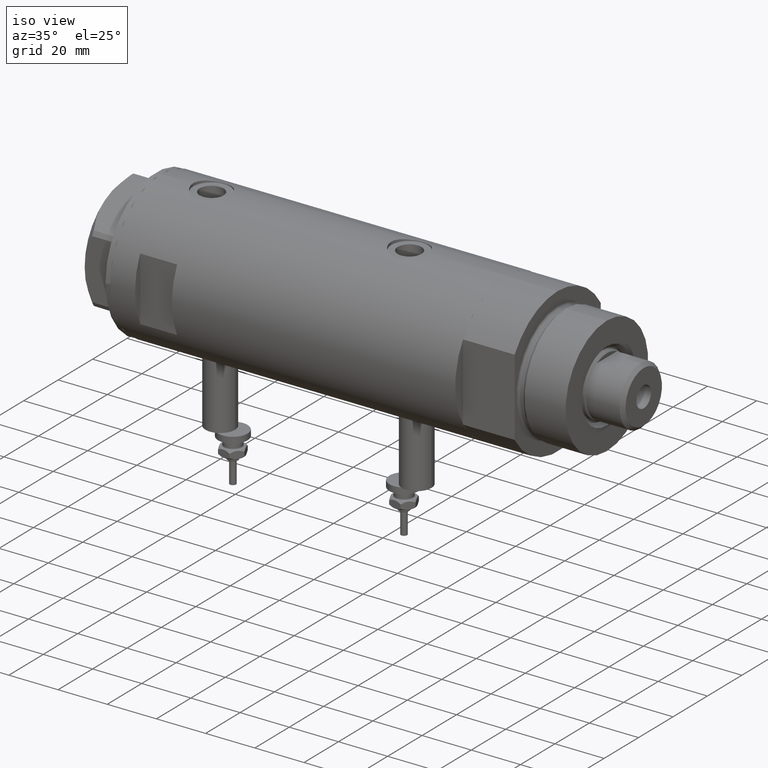
[diagram: clean part render]
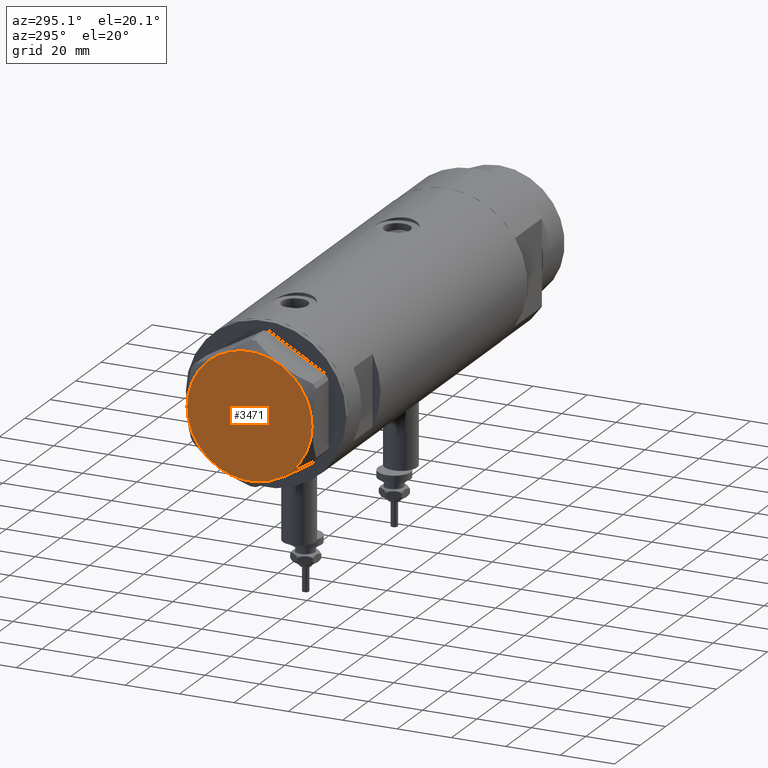
[diagram: tour spotlight — one face highlighted and labeled with its STEP entity id]
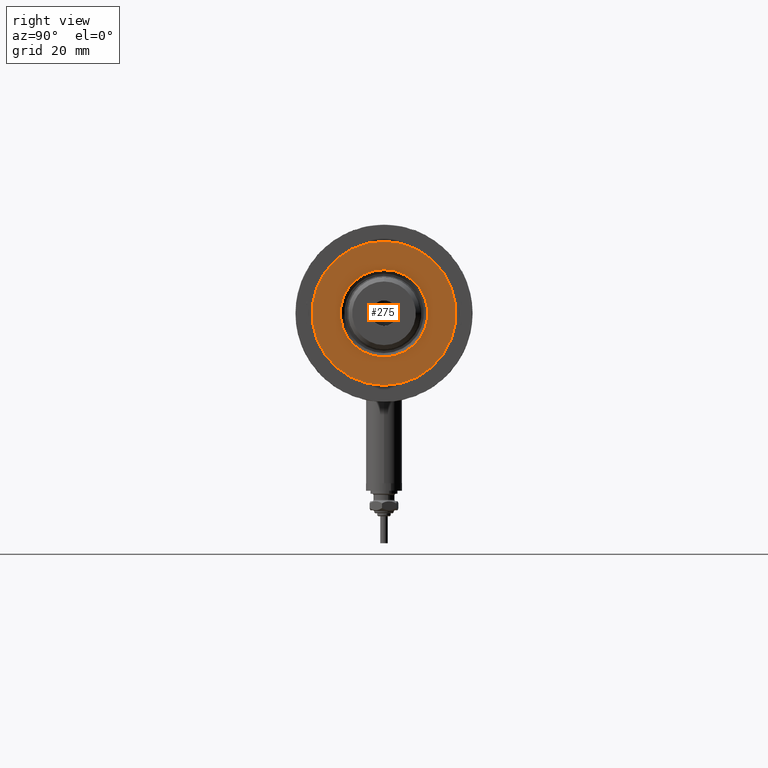
[diagram: tour spotlight — one face highlighted and labeled with its STEP entity id]
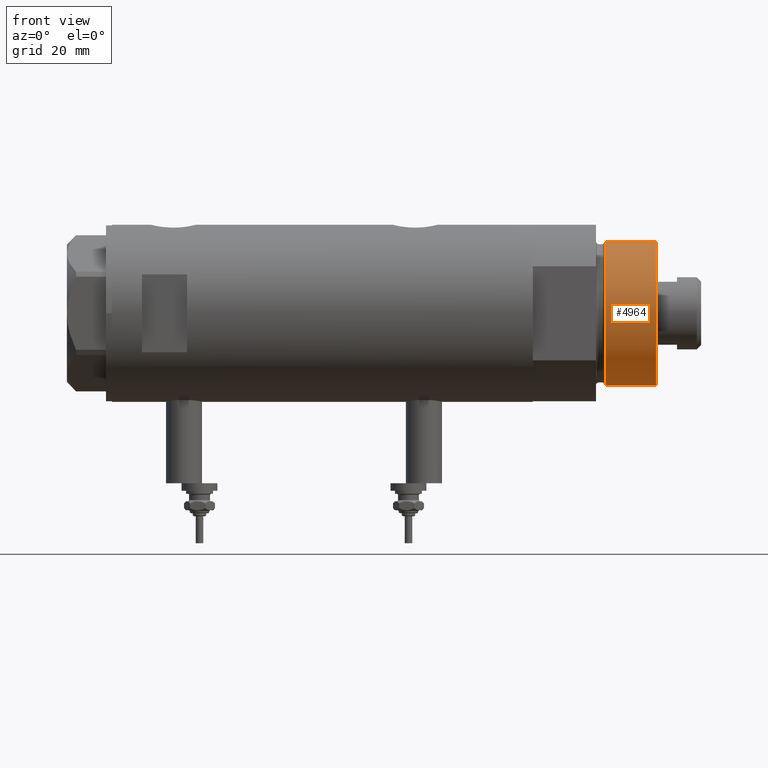
[diagram: tour spotlight — one face highlighted and labeled with its STEP entity id]
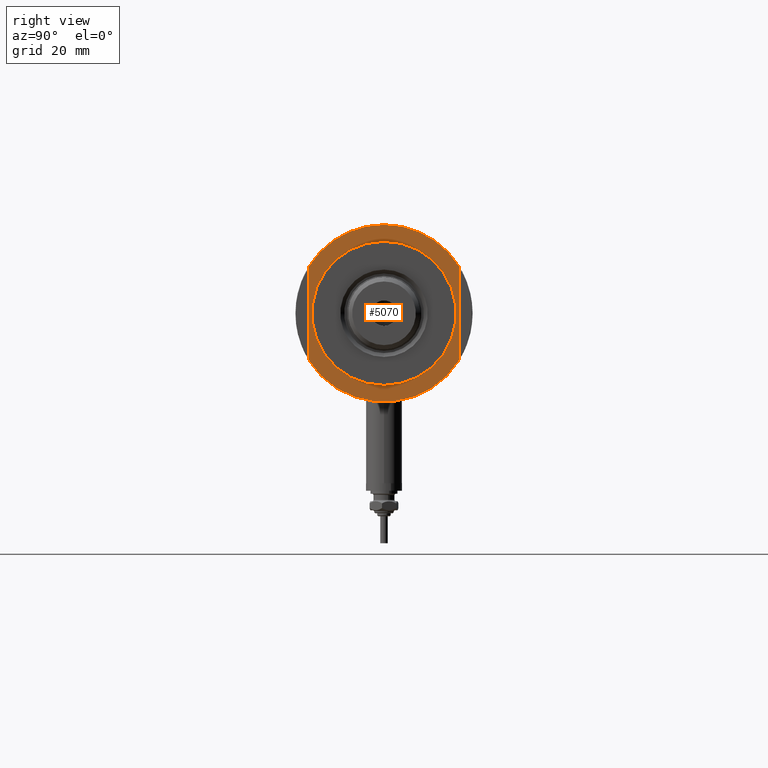
[diagram: tour spotlight — one face highlighted and labeled with its STEP entity id]
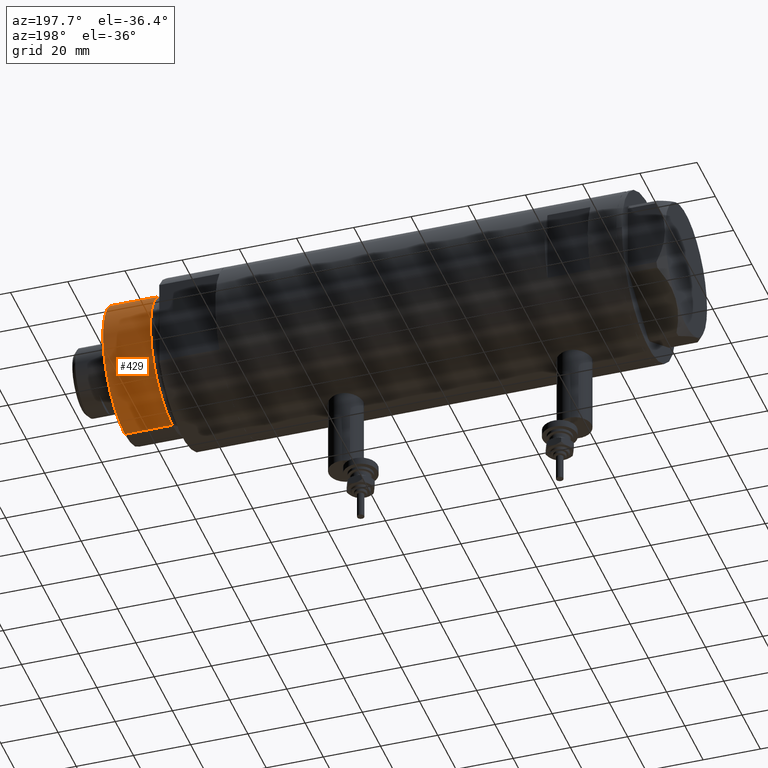
[diagram: tour spotlight — one face highlighted and labeled with its STEP entity id]
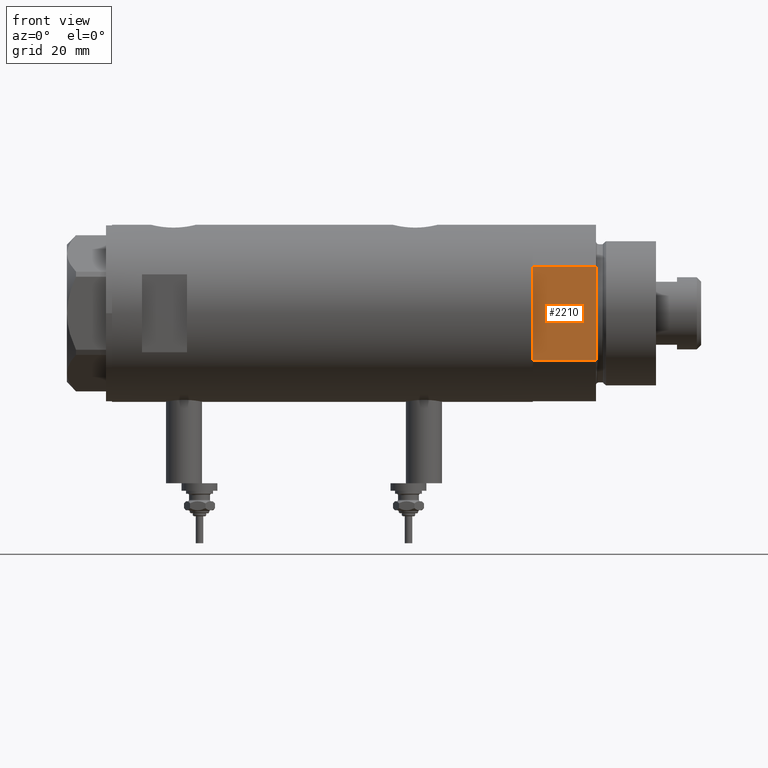
[diagram: tour spotlight — one face highlighted and labeled with its STEP entity id]
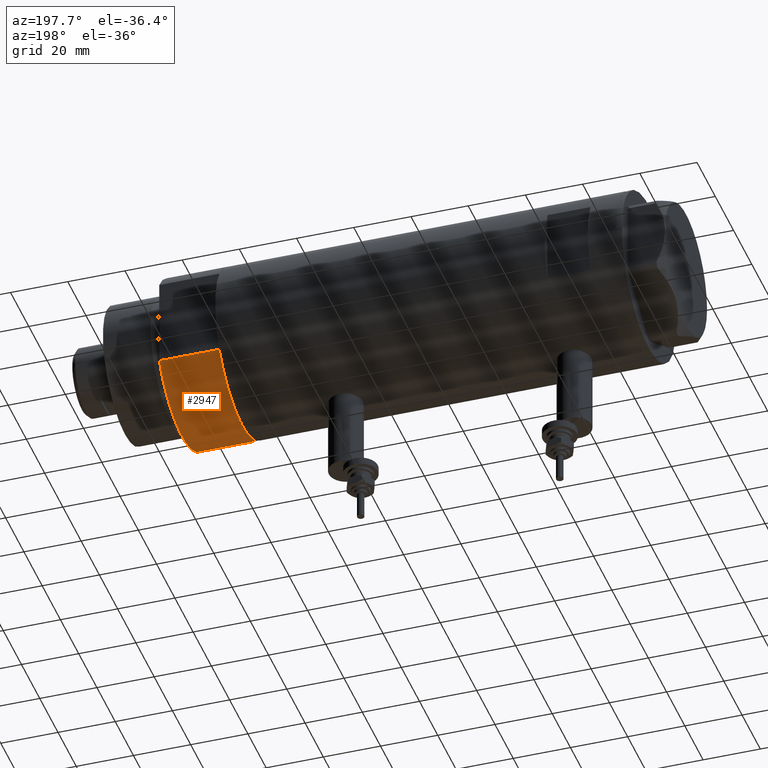
[diagram: tour spotlight — one face highlighted and labeled with its STEP entity id]
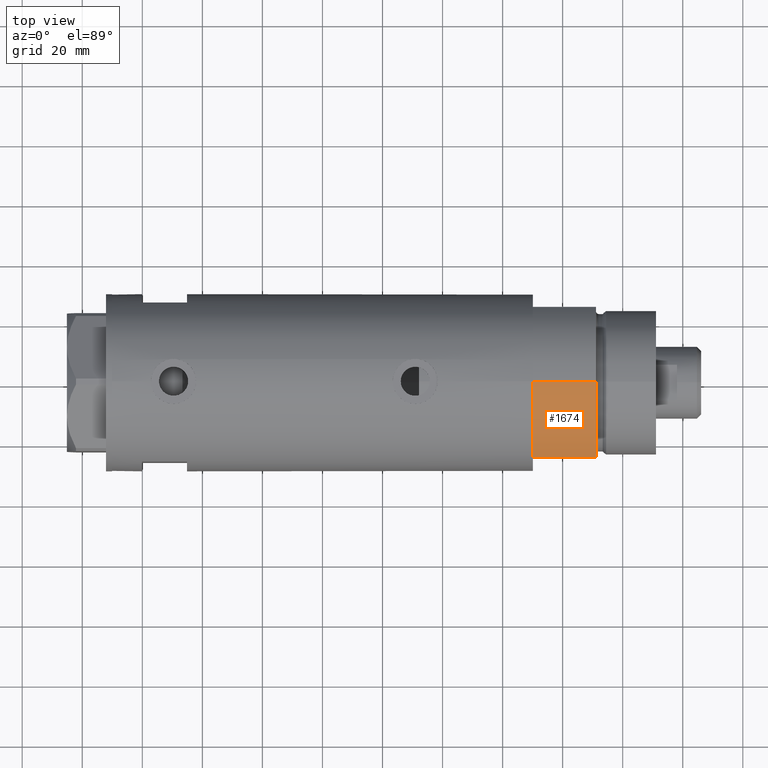
[diagram: tour spotlight — one face highlighted and labeled with its STEP entity id]
A machine part: a face-by-face anatomy tour. The part has 212 B-rep faces; the first image is the clean iso view, then the 8 largest visible faces are spotlighted one at a time (largest first), each with its STEP entity span.

Face 1 — auxiliary view, entity #3471. In plain terms, the highlighted planar face has unit normal (-1, -0, 0).
Definition (entity closure, byte-faithful):
#148 = CIRCLE ( 'NONE', #3799, 23.00000000000004619 ) ;
#333 = EDGE_CURVE ( 'NONE', #2667, #810, #4101, .T. ) ;
#357 = DIRECTION ( 'NONE',  ( 1.000000000000000000, 0.000000000000000000, 0.000000000000000000 ) ) ;
#488 = AXIS2_PLACEMENT_3D ( 'NONE', #2920, #4751, #654 ) ;
#590 = EDGE_CURVE ( 'NONE', #810, #648, #3520, .T. ) ;
#608 = CARTESIAN_POINT ( 'NONE',  ( -11.50000000000004441, 19.91858428704211548, 13.00000000000000000 ) ) ;
#646 = EDGE_LOOP ( 'NONE', ( #2012, #4881, #3392, #3173, #3117, #5731 ) ) ;
#648 = VERTEX_POINT ( 'NONE', #608 ) ;
#654 = DIRECTION ( 'NONE',  ( 1.000000000000000000, 0.000000000000000000, -0.000000000000000000 ) ) ;
#757 = EDGE_CURVE ( 'NONE', #648, #5474, #5346, .T. ) ;
#810 = VERTEX_POINT ( 'NONE', #3004 ) ;
#939 = VERTEX_POINT ( 'NONE', #4027 ) ;
#1082 = PLANE ( 'NONE',  #488 ) ;
#1109 = FACE_OUTER_BOUND ( 'NONE', #646, .T. ) ;
#1119 = DIRECTION ( 'NONE',  ( 1.000000000000000000, 0.000000000000000000, 0.000000000000000000 ) ) ;
#1472 = DIRECTION ( 'NONE',  ( 0.000000000000000000, 0.000000000000000000, 1.000000000000000000 ) ) ;
#2012 = ORIENTED_EDGE ( 'NONE', *, *, #2110, .T. ) ;
#2077 = DIRECTION ( 'NONE',  ( 0.000000000000000000, 0.000000000000000000, 1.000000000000000000 ) ) ;
#2110 = EDGE_CURVE ( 'NONE', #2516, #2667, #5265, .T. ) ;
#2516 = VERTEX_POINT ( 'NONE', #3612 ) ;
#2664 = AXIS2_PLACEMENT_3D ( 'NONE', #4433, #4843, #357 ) ;
#2667 = VERTEX_POINT ( 'NONE', #4029 ) ;
#2831 = DIRECTION ( 'NONE',  ( 1.000000000000000000, 0.000000000000000000, 0.000000000000000000 ) ) ;
#2920 = CARTESIAN_POINT ( 'NONE',  ( 0.000000000000000000, 0.000000000000000000, 13.00000000000000000 ) ) ;
#2977 = CARTESIAN_POINT ( 'NONE',  ( 0.000000000000000000, 0.000000000000000000, 13.00000000000000000 ) ) ;
#3004 = CARTESIAN_POINT ( 'NONE',  ( 11.49999999999990408, 19.91858428704219364, 13.00000000000000000 ) ) ;
#3005 = DIRECTION ( 'NONE',  ( 0.000000000000000000, 0.000000000000000000, 1.000000000000000000 ) ) ;
#3009 = EDGE_CURVE ( 'NONE', #939, #2516, #3345, .T. ) ;
#3090 = DIRECTION ( 'NONE',  ( 1.000000000000000000, 0.000000000000000000, 0.000000000000000000 ) ) ;
#3107 = DIRECTION ( 'NONE',  ( 1.000000000000000000, 0.000000000000000000, 0.000000000000000000 ) ) ;
#3117 = ORIENTED_EDGE ( 'NONE', *, *, #5676, .T. ) ;
#3173 = ORIENTED_EDGE ( 'NONE', *, *, #757, .T. ) ;
#3247 = AXIS2_PLACEMENT_3D ( 'NONE', #5059, #1472, #2831 ) ;
#3325 = DIRECTION ( 'NONE',  ( 0.000000000000000000, 0.000000000000000000, 1.000000000000000000 ) ) ;
#3345 = CIRCLE ( 'NONE', #3247, 23.00000000000004619 ) ;
#3392 = ORIENTED_EDGE ( 'NONE', *, *, #590, .T. ) ;
#3413 = CARTESIAN_POINT ( 'NONE',  ( 0.000000000000000000, 0.000000000000000000, 13.00000000000000000 ) ) ;
#3471 = ADVANCED_FACE ( 'NONE', ( #1109 ), #1082, .T. ) ;
#3520 = CIRCLE ( 'NONE', #3710, 23.00000000000004619 ) ;
#3612 = CARTESIAN_POINT ( 'NONE',  ( 11.50000000000018296, -19.91858428704203732, 13.00000000000000000 ) ) ;
#3710 = AXIS2_PLACEMENT_3D ( 'NONE', #4201, #3325, #1119 ) ;
#3799 = AXIS2_PLACEMENT_3D ( 'NONE', #3413, #4106, #3107 ) ;
#3909 = CARTESIAN_POINT ( 'NONE',  ( 0.000000000000000000, 0.000000000000000000, 13.00000000000000000 ) ) ;
#4027 = CARTESIAN_POINT ( 'NONE',  ( -11.49999999999990585, -19.91858428704219364, 13.00000000000000000 ) ) ;
#4029 = CARTESIAN_POINT ( 'NONE',  ( 22.99999999999995026, 2.373657066004705010E-13, 13.00000000000000000 ) ) ;
#4101 = CIRCLE ( 'NONE', #2664, 23.00000000000004619 ) ;
#4106 = DIRECTION ( 'NONE',  ( 0.000000000000000000, 0.000000000000000000, 1.000000000000000000 ) ) ;
#4201 = CARTESIAN_POINT ( 'NONE',  ( 0.000000000000000000, 0.000000000000000000, 13.00000000000000000 ) ) ;
#4433 = CARTESIAN_POINT ( 'NONE',  ( 0.000000000000000000, 0.000000000000000000, 13.00000000000000000 ) ) ;
#4751 = DIRECTION ( 'NONE',  ( 0.000000000000000000, 0.000000000000000000, 1.000000000000000000 ) ) ;
#4843 = DIRECTION ( 'NONE',  ( 0.000000000000000000, 0.000000000000000000, 1.000000000000000000 ) ) ;
#4881 = ORIENTED_EDGE ( 'NONE', *, *, #333, .T. ) ;
#5059 = CARTESIAN_POINT ( 'NONE',  ( 0.000000000000000000, 0.000000000000000000, 13.00000000000000000 ) ) ;
#5149 = AXIS2_PLACEMENT_3D ( 'NONE', #2977, #2077, #3090 ) ;
#5163 = AXIS2_PLACEMENT_3D ( 'NONE', #3909, #3005, #5311 ) ;
#5265 = CIRCLE ( 'NONE', #5163, 23.00000000000004619 ) ;
#5311 = DIRECTION ( 'NONE',  ( 1.000000000000000000, 0.000000000000000000, 0.000000000000000000 ) ) ;
#5346 = CIRCLE ( 'NONE', #5149, 23.00000000000004619 ) ;
#5474 = VERTEX_POINT ( 'NONE', #5560 ) ;
#5560 = CARTESIAN_POINT ( 'NONE',  ( -23.00000000000004619, -8.112498833180673323E-14, 13.00000000000000000 ) ) ;
#5676 = EDGE_CURVE ( 'NONE', #5474, #939, #148, .T. ) ;
#5731 = ORIENTED_EDGE ( 'NONE', *, *, #3009, .T. ) ;

Face 2 — right view, entity #275. In plain terms, the highlighted planar face has unit normal (1, 0, -0).
Definition (entity closure, byte-faithful):
#149 = EDGE_CURVE ( 'NONE', #1471, #5301, #859, .T. ) ;
#275 = ADVANCED_FACE ( 'NONE', ( #5364, #1270 ), #4470, .T. ) ;
#489 = EDGE_LOOP ( 'NONE', ( #2098, #4468 ) ) ;
#684 = CIRCLE ( 'NONE', #983, 14.54999999999997939 ) ;
#723 = CARTESIAN_POINT ( 'NONE',  ( 24.00000000000000355, 2.939152317953648289E-15, 41.00000000000000000 ) ) ;
#727 = DIRECTION ( 'NONE',  ( 0.000000000000000000, 0.000000000000000000, 1.000000000000000000 ) ) ;
#745 = DIRECTION ( 'NONE',  ( -0.000000000000000000, -0.000000000000000000, -1.000000000000000000 ) ) ;
#749 = AXIS2_PLACEMENT_3D ( 'NONE', #5269, #745, #5689 ) ;
#859 = CIRCLE ( 'NONE', #2353, 24.00000000000000355 ) ;
#983 = AXIS2_PLACEMENT_3D ( 'NONE', #2089, #1171, #4431 ) ;
#1171 = DIRECTION ( 'NONE',  ( -0.000000000000000000, -0.000000000000000000, -1.000000000000000000 ) ) ;
#1181 = VERTEX_POINT ( 'NONE', #1619 ) ;
#1270 = FACE_OUTER_BOUND ( 'NONE', #489, .T. ) ;
#1471 = VERTEX_POINT ( 'NONE', #723 ) ;
#1619 = CARTESIAN_POINT ( 'NONE',  ( -14.54999999999997939, 1.781861092759396721E-15, 41.00000000000000000 ) ) ;
#1650 = AXIS2_PLACEMENT_3D ( 'NONE', #2874, #727, #5248 ) ;
#2089 = CARTESIAN_POINT ( 'NONE',  ( 0.000000000000000000, 0.000000000000000000, 41.00000000000000000 ) ) ;
#2098 = ORIENTED_EDGE ( 'NONE', *, *, #2707, .T. ) ;
#2323 = CARTESIAN_POINT ( 'NONE',  ( 0.000000000000000000, 0.000000000000000000, 41.00000000000000000 ) ) ;
#2353 = AXIS2_PLACEMENT_3D ( 'NONE', #4023, #5844, #3572 ) ;
#2668 = ORIENTED_EDGE ( 'NONE', *, *, #4055, .T. ) ;
#2707 = EDGE_CURVE ( 'NONE', #5301, #1471, #5271, .T. ) ;
#2874 = CARTESIAN_POINT ( 'NONE',  ( 0.000000000000000000, 0.000000000000000000, 41.00000000000000000 ) ) ;
#2916 = DIRECTION ( 'NONE',  ( 1.000000000000000000, 0.000000000000000000, -0.000000000000000000 ) ) ;
#3572 = DIRECTION ( 'NONE',  ( 1.000000000000000000, 0.000000000000000000, 0.000000000000000000 ) ) ;
#3896 = EDGE_LOOP ( 'NONE', ( #2668, #5817 ) ) ;
#4019 = EDGE_CURVE ( 'NONE', #1181, #5459, #684, .T. ) ;
#4023 = CARTESIAN_POINT ( 'NONE',  ( 0.000000000000000000, 0.000000000000000000, 41.00000000000000000 ) ) ;
#4055 = EDGE_CURVE ( 'NONE', #5459, #1181, #4603, .T. ) ;
#4247 = DIRECTION ( 'NONE',  ( 0.000000000000000000, 0.000000000000000000, 1.000000000000000000 ) ) ;
#4431 = DIRECTION ( 'NONE',  ( 1.000000000000000000, 0.000000000000000000, 0.000000000000000000 ) ) ;
#4468 = ORIENTED_EDGE ( 'NONE', *, *, #149, .T. ) ;
#4470 = PLANE ( 'NONE',  #4959 ) ;
#4603 = CIRCLE ( 'NONE', #749, 14.54999999999997939 ) ;
#4802 = CARTESIAN_POINT ( 'NONE',  ( 14.54999999999997939, 0.000000000000000000, 41.00000000000000000 ) ) ;
#4959 = AXIS2_PLACEMENT_3D ( 'NONE', #2323, #4247, #2916 ) ;
#5248 = DIRECTION ( 'NONE',  ( 1.000000000000000000, 0.000000000000000000, 0.000000000000000000 ) ) ;
#5269 = CARTESIAN_POINT ( 'NONE',  ( 0.000000000000000000, 0.000000000000000000, 41.00000000000000000 ) ) ;
#5271 = CIRCLE ( 'NONE', #1650, 24.00000000000000355 ) ;
#5301 = VERTEX_POINT ( 'NONE', #5871 ) ;
#5364 = FACE_BOUND ( 'NONE', #3896, .T. ) ;
#5459 = VERTEX_POINT ( 'NONE', #4802 ) ;
#5689 = DIRECTION ( 'NONE',  ( 1.000000000000000000, 0.000000000000000000, 0.000000000000000000 ) ) ;
#5817 = ORIENTED_EDGE ( 'NONE', *, *, #4019, .T. ) ;
#5844 = DIRECTION ( 'NONE',  ( 0.000000000000000000, 0.000000000000000000, 1.000000000000000000 ) ) ;
#5871 = CARTESIAN_POINT ( 'NONE',  ( -24.00000000000000355, 0.000000000000000000, 41.00000000000000000 ) ) ;

Face 3 — front view, entity #4964. In plain terms, the highlighted cylindrical surface (partial cylindrical patch) has radius 24 mm, axis along (-1, -0, 0).
Definition (entity closure, byte-faithful):
#133 = ORIENTED_EDGE ( 'NONE', *, *, #5221, .T. ) ;
#138 = VECTOR ( 'NONE', #1680, 1000.000000000000000 ) ;
#220 = LINE ( 'NONE', #4837, #138 ) ;
#723 = CARTESIAN_POINT ( 'NONE',  ( 24.00000000000000355, 2.939152317953648289E-15, 41.00000000000000000 ) ) ;
#727 = DIRECTION ( 'NONE',  ( 0.000000000000000000, 0.000000000000000000, 1.000000000000000000 ) ) ;
#853 = DIRECTION ( 'NONE',  ( 1.000000000000000000, 0.000000000000000000, 0.000000000000000000 ) ) ;
#1069 = CARTESIAN_POINT ( 'NONE',  ( 0.000000000000000000, 0.000000000000000000, 41.00000000000000000 ) ) ;
#1102 = DIRECTION ( 'NONE',  ( -0.000000000000000000, -0.000000000000000000, -1.000000000000000000 ) ) ;
#1471 = VERTEX_POINT ( 'NONE', #723 ) ;
#1524 = ORIENTED_EDGE ( 'NONE', *, *, #4785, .F. ) ;
#1650 = AXIS2_PLACEMENT_3D ( 'NONE', #2874, #727, #5248 ) ;
#1680 = DIRECTION ( 'NONE',  ( -0.000000000000000000, -0.000000000000000000, -1.000000000000000000 ) ) ;
#1876 = AXIS2_PLACEMENT_3D ( 'NONE', #5497, #5419, #853 ) ;
#1931 = DIRECTION ( 'NONE',  ( -1.000000000000000000, 0.000000000000000000, 0.000000000000000000 ) ) ;
#2558 = CARTESIAN_POINT ( 'NONE',  ( -24.00000000000000355, 0.000000000000000000, 41.00000000000000000 ) ) ;
#2639 = VERTEX_POINT ( 'NONE', #3998 ) ;
#2707 = EDGE_CURVE ( 'NONE', #5301, #1471, #5271, .T. ) ;
#2721 = ORIENTED_EDGE ( 'NONE', *, *, #5780, .T. ) ;
#2874 = CARTESIAN_POINT ( 'NONE',  ( 0.000000000000000000, 0.000000000000000000, 41.00000000000000000 ) ) ;
#3030 = AXIS2_PLACEMENT_3D ( 'NONE', #1069, #5486, #1931 ) ;
#3257 = EDGE_LOOP ( 'NONE', ( #1524, #3339, #2721, #133 ) ) ;
#3339 = ORIENTED_EDGE ( 'NONE', *, *, #2707, .F. ) ;
#3670 = FACE_OUTER_BOUND ( 'NONE', #3257, .T. ) ;
#3734 = CYLINDRICAL_SURFACE ( 'NONE', #3030, 24.00000000000000355 ) ;
#3998 = CARTESIAN_POINT ( 'NONE',  ( 24.00000000000000355, 2.939152317953648289E-15, 24.37384048104054557 ) ) ;
#4265 = CARTESIAN_POINT ( 'NONE',  ( -24.00000000000000355, 0.000000000000000000, 24.37384048104054557 ) ) ;
#4372 = CIRCLE ( 'NONE', #1876, 24.00000000000000355 ) ;
#4401 = VERTEX_POINT ( 'NONE', #4265 ) ;
#4778 = LINE ( 'NONE', #2558, #5722 ) ;
#4785 = EDGE_CURVE ( 'NONE', #1471, #2639, #220, .T. ) ;
#4837 = CARTESIAN_POINT ( 'NONE',  ( 24.00000000000000355, 2.939152317953648289E-15, 41.00000000000000000 ) ) ;
#4964 = ADVANCED_FACE ( 'NONE', ( #3670 ), #3734, .T. ) ;
#5221 = EDGE_CURVE ( 'NONE', #4401, #2639, #4372, .T. ) ;
#5248 = DIRECTION ( 'NONE',  ( 1.000000000000000000, 0.000000000000000000, 0.000000000000000000 ) ) ;
#5271 = CIRCLE ( 'NONE', #1650, 24.00000000000000355 ) ;
#5301 = VERTEX_POINT ( 'NONE', #5871 ) ;
#5419 = DIRECTION ( 'NONE',  ( -0.000000000000000000, -0.000000000000000000, 1.000000000000000000 ) ) ;
#5486 = DIRECTION ( 'NONE',  ( -0.000000000000000000, -0.000000000000000000, -1.000000000000000000 ) ) ;
#5497 = CARTESIAN_POINT ( 'NONE',  ( 0.000000000000000000, 0.000000000000000000, 24.37384048104054557 ) ) ;
#5722 = VECTOR ( 'NONE', #1102, 1000.000000000000000 ) ;
#5780 = EDGE_CURVE ( 'NONE', #5301, #4401, #4778, .T. ) ;
#5871 = CARTESIAN_POINT ( 'NONE',  ( -24.00000000000000355, 0.000000000000000000, 41.00000000000000000 ) ) ;

Face 4 — right view, entity #5070. In plain terms, the highlighted planar face has unit normal (1, 0, -0).
Definition (entity closure, byte-faithful):
#62 = DIRECTION ( 'NONE',  ( 0.000000000000000000, 0.000000000000000000, 1.000000000000000000 ) ) ;
#213 = FACE_BOUND ( 'NONE', #335, .T. ) ;
#335 = EDGE_LOOP ( 'NONE', ( #3725, #3768 ) ) ;
#380 = VERTEX_POINT ( 'NONE', #4209 ) ;
#388 = VECTOR ( 'NONE', #1370, 1000.000000000000000 ) ;
#449 = DIRECTION ( 'NONE',  ( 1.000000000000000000, 0.000000000000000000, 0.000000000000000000 ) ) ;
#500 = EDGE_CURVE ( 'NONE', #2611, #5172, #775, .T. ) ;
#673 = DIRECTION ( 'NONE',  ( 1.000000000000000000, 0.000000000000000000, -0.000000000000000000 ) ) ;
#685 = VERTEX_POINT ( 'NONE', #2902 ) ;
#705 = FACE_OUTER_BOUND ( 'NONE', #5137, .T. ) ;
#775 = LINE ( 'NONE', #981, #388 ) ;
#923 = VERTEX_POINT ( 'NONE', #5061 ) ;
#954 = CARTESIAN_POINT ( 'NONE',  ( 0.000000000000000000, 0.000000000000000000, 21.00000000000000000 ) ) ;
#981 = CARTESIAN_POINT ( 'NONE',  ( -15.66045976336583401, 25.00000000000000000, 21.00000000000000000 ) ) ;
#1049 = AXIS2_PLACEMENT_3D ( 'NONE', #3516, #3636, #2621 ) ;
#1077 = ORIENTED_EDGE ( 'NONE', *, *, #500, .F. ) ;
#1081 = CARTESIAN_POINT ( 'NONE',  ( 0.000000000000000000, 0.000000000000000000, 21.00000000000000000 ) ) ;
#1124 = CARTESIAN_POINT ( 'NONE',  ( 0.000000000000000000, 0.000000000000000000, 21.00000000000000000 ) ) ;
#1219 = VERTEX_POINT ( 'NONE', #1676 ) ;
#1221 = AXIS2_PLACEMENT_3D ( 'NONE', #1124, #1988, #673 ) ;
#1348 = AXIS2_PLACEMENT_3D ( 'NONE', #3222, #5866, #449 ) ;
#1370 = DIRECTION ( 'NONE',  ( 1.000000000000000000, 0.000000000000000000, 0.000000000000000000 ) ) ;
#1393 = EDGE_CURVE ( 'NONE', #3841, #1219, #4497, .T. ) ;
#1463 = EDGE_CURVE ( 'NONE', #685, #1219, #4757, .T. ) ;
#1618 = AXIS2_PLACEMENT_3D ( 'NONE', #954, #62, #3328 ) ;
#1636 = ORIENTED_EDGE ( 'NONE', *, *, #1463, .F. ) ;
#1676 = CARTESIAN_POINT ( 'NONE',  ( -15.66045976336583045, -24.99999999999999645, 20.99999999999999645 ) ) ;
#1988 = DIRECTION ( 'NONE',  ( 0.000000000000000000, 0.000000000000000000, 1.000000000000000000 ) ) ;
#2015 = CIRCLE ( 'NONE', #1348, 24.00000000000000000 ) ;
#2024 = DIRECTION ( 'NONE',  ( -0.000000000000000000, -0.000000000000000000, -1.000000000000000000 ) ) ;
#2081 = CARTESIAN_POINT ( 'NONE',  ( 0.000000000000000000, 0.000000000000000000, 21.00000000000000000 ) ) ;
#2206 = CIRCLE ( 'NONE', #5075, 29.50000000000000355 ) ;
#2242 = EDGE_CURVE ( 'NONE', #923, #380, #2015, .T. ) ;
#2611 = VERTEX_POINT ( 'NONE', #4930 ) ;
#2621 = DIRECTION ( 'NONE',  ( 1.000000000000000000, 0.000000000000000000, 0.000000000000000000 ) ) ;
#2857 = ORIENTED_EDGE ( 'NONE', *, *, #1393, .T. ) ;
#2889 = DIRECTION ( 'NONE',  ( 0.000000000000000000, 0.000000000000000000, 1.000000000000000000 ) ) ;
#2902 = CARTESIAN_POINT ( 'NONE',  ( 15.66045976336583045, -25.00000000000000000, 21.00000000000000355 ) ) ;
#3222 = CARTESIAN_POINT ( 'NONE',  ( 0.000000000000000000, 0.000000000000000000, 21.00000000000000000 ) ) ;
#3328 = DIRECTION ( 'NONE',  ( 1.000000000000000000, 0.000000000000000000, 0.000000000000000000 ) ) ;
#3477 = ORIENTED_EDGE ( 'NONE', *, *, #4905, .T. ) ;
#3479 = CARTESIAN_POINT ( 'NONE',  ( -15.66045976336583401, -25.00000000000000000, 21.00000000000000000 ) ) ;
#3516 = CARTESIAN_POINT ( 'NONE',  ( 0.000000000000000000, 0.000000000000000000, 21.00000000000000000 ) ) ;
#3607 = CIRCLE ( 'NONE', #3801, 24.00000000000000000 ) ;
#3636 = DIRECTION ( 'NONE',  ( 0.000000000000000000, 0.000000000000000000, 1.000000000000000000 ) ) ;
#3652 = EDGE_CURVE ( 'NONE', #2611, #3841, #2206, .T. ) ;
#3725 = ORIENTED_EDGE ( 'NONE', *, *, #4462, .T. ) ;
#3768 = ORIENTED_EDGE ( 'NONE', *, *, #2242, .T. ) ;
#3801 = AXIS2_PLACEMENT_3D ( 'NONE', #2081, #2024, #4391 ) ;
#3841 = VERTEX_POINT ( 'NONE', #5445 ) ;
#4109 = CARTESIAN_POINT ( 'NONE',  ( 15.66045976336583045, 24.99999999999999645, 20.99999999999999645 ) ) ;
#4209 = CARTESIAN_POINT ( 'NONE',  ( 24.00000000000000000, 0.000000000000000000, 21.00000000000000000 ) ) ;
#4363 = PLANE ( 'NONE',  #1221 ) ;
#4391 = DIRECTION ( 'NONE',  ( 1.000000000000000000, 0.000000000000000000, 0.000000000000000000 ) ) ;
#4462 = EDGE_CURVE ( 'NONE', #380, #923, #3607, .T. ) ;
#4497 = CIRCLE ( 'NONE', #1049, 29.50000000000000355 ) ;
#4576 = VECTOR ( 'NONE', #5330, 1000.000000000000000 ) ;
#4757 = LINE ( 'NONE', #3479, #4576 ) ;
#4905 = EDGE_CURVE ( 'NONE', #685, #5172, #5611, .T. ) ;
#4930 = CARTESIAN_POINT ( 'NONE',  ( -15.66045976336583045, 24.99999999999999645, 21.00000000000000355 ) ) ;
#5061 = CARTESIAN_POINT ( 'NONE',  ( -24.00000000000000000, 2.939152317953647894E-15, 21.00000000000000000 ) ) ;
#5070 = ADVANCED_FACE ( 'NONE', ( #213, #705 ), #4363, .T. ) ;
#5075 = AXIS2_PLACEMENT_3D ( 'NONE', #1081, #2889, #5527 ) ;
#5137 = EDGE_LOOP ( 'NONE', ( #1636, #3477, #1077, #5173, #2857 ) ) ;
#5172 = VERTEX_POINT ( 'NONE', #4109 ) ;
#5173 = ORIENTED_EDGE ( 'NONE', *, *, #3652, .T. ) ;
#5330 = DIRECTION ( 'NONE',  ( -1.000000000000000000, -0.000000000000000000, -0.000000000000000000 ) ) ;
#5445 = CARTESIAN_POINT ( 'NONE',  ( -29.50000000000000355, 0.000000000000000000, 21.00000000000000000 ) ) ;
#5527 = DIRECTION ( 'NONE',  ( 1.000000000000000000, 0.000000000000000000, 0.000000000000000000 ) ) ;
#5611 = CIRCLE ( 'NONE', #1618, 29.50000000000000355 ) ;
#5866 = DIRECTION ( 'NONE',  ( -0.000000000000000000, -0.000000000000000000, -1.000000000000000000 ) ) ;

Face 5 — auxiliary view, entity #429. In plain terms, the highlighted cylindrical surface (partial cylindrical patch) has radius 24 mm, axis along (-1, -0, 0).
Definition (entity closure, byte-faithful):
#138 = VECTOR ( 'NONE', #1680, 1000.000000000000000 ) ;
#149 = EDGE_CURVE ( 'NONE', #1471, #5301, #859, .T. ) ;
#220 = LINE ( 'NONE', #4837, #138 ) ;
#429 = ADVANCED_FACE ( 'NONE', ( #1580 ), #2851, .T. ) ;
#723 = CARTESIAN_POINT ( 'NONE',  ( 24.00000000000000355, 2.939152317953648289E-15, 41.00000000000000000 ) ) ;
#859 = CIRCLE ( 'NONE', #2353, 24.00000000000000355 ) ;
#1059 = CARTESIAN_POINT ( 'NONE',  ( 0.000000000000000000, 0.000000000000000000, 24.37384048104054557 ) ) ;
#1102 = DIRECTION ( 'NONE',  ( -0.000000000000000000, -0.000000000000000000, -1.000000000000000000 ) ) ;
#1388 = ORIENTED_EDGE ( 'NONE', *, *, #149, .F. ) ;
#1471 = VERTEX_POINT ( 'NONE', #723 ) ;
#1580 = FACE_OUTER_BOUND ( 'NONE', #3945, .T. ) ;
#1680 = DIRECTION ( 'NONE',  ( -0.000000000000000000, -0.000000000000000000, -1.000000000000000000 ) ) ;
#1966 = ORIENTED_EDGE ( 'NONE', *, *, #4785, .T. ) ;
#2353 = AXIS2_PLACEMENT_3D ( 'NONE', #4023, #5844, #3572 ) ;
#2558 = CARTESIAN_POINT ( 'NONE',  ( -24.00000000000000355, 0.000000000000000000, 41.00000000000000000 ) ) ;
#2639 = VERTEX_POINT ( 'NONE', #3998 ) ;
#2661 = AXIS2_PLACEMENT_3D ( 'NONE', #1059, #4227, #3843 ) ;
#2851 = CYLINDRICAL_SURFACE ( 'NONE', #5913, 24.00000000000000355 ) ;
#3126 = CIRCLE ( 'NONE', #2661, 24.00000000000000355 ) ;
#3395 = CARTESIAN_POINT ( 'NONE',  ( 0.000000000000000000, 0.000000000000000000, 41.00000000000000000 ) ) ;
#3572 = DIRECTION ( 'NONE',  ( 1.000000000000000000, 0.000000000000000000, 0.000000000000000000 ) ) ;
#3580 = ORIENTED_EDGE ( 'NONE', *, *, #5780, .F. ) ;
#3843 = DIRECTION ( 'NONE',  ( 1.000000000000000000, 0.000000000000000000, 0.000000000000000000 ) ) ;
#3945 = EDGE_LOOP ( 'NONE', ( #1388, #1966, #4953, #3580 ) ) ;
#3998 = CARTESIAN_POINT ( 'NONE',  ( 24.00000000000000355, 2.939152317953648289E-15, 24.37384048104054557 ) ) ;
#4023 = CARTESIAN_POINT ( 'NONE',  ( 0.000000000000000000, 0.000000000000000000, 41.00000000000000000 ) ) ;
#4227 = DIRECTION ( 'NONE',  ( -0.000000000000000000, -0.000000000000000000, 1.000000000000000000 ) ) ;
#4265 = CARTESIAN_POINT ( 'NONE',  ( -24.00000000000000355, 0.000000000000000000, 24.37384048104054557 ) ) ;
#4401 = VERTEX_POINT ( 'NONE', #4265 ) ;
#4506 = EDGE_CURVE ( 'NONE', #2639, #4401, #3126, .T. ) ;
#4680 = DIRECTION ( 'NONE',  ( -0.000000000000000000, -0.000000000000000000, -1.000000000000000000 ) ) ;
#4778 = LINE ( 'NONE', #2558, #5722 ) ;
#4785 = EDGE_CURVE ( 'NONE', #1471, #2639, #220, .T. ) ;
#4837 = CARTESIAN_POINT ( 'NONE',  ( 24.00000000000000355, 2.939152317953648289E-15, 41.00000000000000000 ) ) ;
#4953 = ORIENTED_EDGE ( 'NONE', *, *, #4506, .T. ) ;
#5223 = DIRECTION ( 'NONE',  ( -1.000000000000000000, 0.000000000000000000, 0.000000000000000000 ) ) ;
#5301 = VERTEX_POINT ( 'NONE', #5871 ) ;
#5722 = VECTOR ( 'NONE', #1102, 1000.000000000000000 ) ;
#5780 = EDGE_CURVE ( 'NONE', #5301, #4401, #4778, .T. ) ;
#5844 = DIRECTION ( 'NONE',  ( 0.000000000000000000, 0.000000000000000000, 1.000000000000000000 ) ) ;
#5871 = CARTESIAN_POINT ( 'NONE',  ( -24.00000000000000355, 0.000000000000000000, 41.00000000000000000 ) ) ;
#5913 = AXIS2_PLACEMENT_3D ( 'NONE', #3395, #4680, #5223 ) ;

Face 6 — front view, entity #2210. In plain terms, the highlighted planar face has unit normal (-0, 1, 0).
Definition (entity closure, byte-faithful):
#31 = DIRECTION ( 'NONE',  ( -1.000000000000000000, -0.000000000000000000, -0.000000000000000000 ) ) ;
#155 = LINE ( 'NONE', #5026, #3706 ) ;
#189 = CARTESIAN_POINT ( 'NONE',  ( 15.66045976336583401, -25.00000000000000000, 0.000000000000000000 ) ) ;
#250 = CARTESIAN_POINT ( 'NONE',  ( -15.66045976336583401, -25.00000000000000000, 0.000000000000000000 ) ) ;
#283 = VECTOR ( 'NONE', #3461, 1000.000000000000000 ) ;
#308 = VECTOR ( 'NONE', #2140, 1000.000000000000000 ) ;
#526 = DIRECTION ( 'NONE',  ( -1.000000000000000000, -0.000000000000000000, -0.000000000000000000 ) ) ;
#600 = ORIENTED_EDGE ( 'NONE', *, *, #3954, .F. ) ;
#660 = LINE ( 'NONE', #3260, #4476 ) ;
#685 = VERTEX_POINT ( 'NONE', #2902 ) ;
#850 = CARTESIAN_POINT ( 'NONE',  ( -7.141428428542853091, -25.00000000000000000, 0.000000000000000000 ) ) ;
#888 = LINE ( 'NONE', #5007, #1022 ) ;
#1022 = VECTOR ( 'NONE', #31, 1000.000000000000000 ) ;
#1219 = VERTEX_POINT ( 'NONE', #1676 ) ;
#1347 = EDGE_CURVE ( 'NONE', #2856, #1219, #4770, .T. ) ;
#1463 = EDGE_CURVE ( 'NONE', #685, #1219, #4757, .T. ) ;
#1676 = CARTESIAN_POINT ( 'NONE',  ( -15.66045976336583045, -24.99999999999999645, 20.99999999999999645 ) ) ;
#1786 = ORIENTED_EDGE ( 'NONE', *, *, #1463, .T. ) ;
#1877 = ORIENTED_EDGE ( 'NONE', *, *, #1347, .F. ) ;
#2140 = DIRECTION ( 'NONE',  ( -1.000000000000000000, -0.000000000000000000, -0.000000000000000000 ) ) ;
#2210 = ADVANCED_FACE ( 'NONE', ( #4440 ), #5366, .F. ) ;
#2264 = ORIENTED_EDGE ( 'NONE', *, *, #5275, .F. ) ;
#2295 = DIRECTION ( 'NONE',  ( -0.000000000000000000, 1.000000000000000000, 0.000000000000000000 ) ) ;
#2351 = DIRECTION ( 'NONE',  ( -0.000000000000000000, -0.000000000000000000, 1.000000000000000000 ) ) ;
#2630 = VERTEX_POINT ( 'NONE', #3241 ) ;
#2856 = VERTEX_POINT ( 'NONE', #4272 ) ;
#2902 = CARTESIAN_POINT ( 'NONE',  ( 15.66045976336583045, -25.00000000000000000, 21.00000000000000355 ) ) ;
#3151 = ORIENTED_EDGE ( 'NONE', *, *, #5538, .T. ) ;
#3241 = CARTESIAN_POINT ( 'NONE',  ( 7.141428428542853091, -25.00000000000000000, 0.000000000000000000 ) ) ;
#3260 = CARTESIAN_POINT ( 'NONE',  ( 15.66045976336583401, -25.00000000000000000, 0.000000000000000000 ) ) ;
#3461 = DIRECTION ( 'NONE',  ( -0.000000000000000000, -0.000000000000000000, 1.000000000000000000 ) ) ;
#3470 = ORIENTED_EDGE ( 'NONE', *, *, #4385, .F. ) ;
#3479 = CARTESIAN_POINT ( 'NONE',  ( -15.66045976336583401, -25.00000000000000000, 21.00000000000000000 ) ) ;
#3706 = VECTOR ( 'NONE', #526, 1000.000000000000000 ) ;
#3833 = AXIS2_PLACEMENT_3D ( 'NONE', #5389, #2295, #5894 ) ;
#3954 = EDGE_CURVE ( 'NONE', #4044, #2630, #4370, .T. ) ;
#4044 = VERTEX_POINT ( 'NONE', #189 ) ;
#4272 = CARTESIAN_POINT ( 'NONE',  ( -15.66045976336582690, -25.00000000000000000, 0.000000000000000000 ) ) ;
#4350 = EDGE_LOOP ( 'NONE', ( #1786, #1877, #3470, #2264, #600, #3151 ) ) ;
#4370 = LINE ( 'NONE', #4741, #308 ) ;
#4385 = EDGE_CURVE ( 'NONE', #5677, #2856, #155, .T. ) ;
#4440 = FACE_OUTER_BOUND ( 'NONE', #4350, .T. ) ;
#4476 = VECTOR ( 'NONE', #2351, 1000.000000000000000 ) ;
#4576 = VECTOR ( 'NONE', #5330, 1000.000000000000000 ) ;
#4741 = CARTESIAN_POINT ( 'NONE',  ( -15.66045976336583401, -25.00000000000000000, 0.000000000000000000 ) ) ;
#4757 = LINE ( 'NONE', #3479, #4576 ) ;
#4770 = LINE ( 'NONE', #250, #283 ) ;
#5007 = CARTESIAN_POINT ( 'NONE',  ( -15.66045976336583401, -25.00000000000000000, 0.000000000000000000 ) ) ;
#5026 = CARTESIAN_POINT ( 'NONE',  ( -15.66045976336583401, -25.00000000000000000, 0.000000000000000000 ) ) ;
#5275 = EDGE_CURVE ( 'NONE', #2630, #5677, #888, .T. ) ;
#5330 = DIRECTION ( 'NONE',  ( -1.000000000000000000, -0.000000000000000000, -0.000000000000000000 ) ) ;
#5366 = PLANE ( 'NONE',  #3833 ) ;
#5389 = CARTESIAN_POINT ( 'NONE',  ( -15.66045976336583401, -25.00000000000000000, 0.000000000000000000 ) ) ;
#5538 = EDGE_CURVE ( 'NONE', #4044, #685, #660, .T. ) ;
#5677 = VERTEX_POINT ( 'NONE', #850 ) ;
#5894 = DIRECTION ( 'NONE',  ( 0.000000000000000000, -0.000000000000000000, 1.000000000000000000 ) ) ;

Face 7 — auxiliary view, entity #2947. In plain terms, the highlighted cylindrical surface (partial cylindrical patch) has radius 29.5 mm, axis along (-1, -0, 0).
Definition (entity closure, byte-faithful):
#1 = ORIENTED_EDGE ( 'NONE', *, *, #1942, .T. ) ;
#62 = DIRECTION ( 'NONE',  ( 0.000000000000000000, 0.000000000000000000, 1.000000000000000000 ) ) ;
#131 = CARTESIAN_POINT ( 'NONE',  ( 0.000000000000000000, 0.000000000000000000, 0.000000000000000000 ) ) ;
#142 = DIRECTION ( 'NONE',  ( -0.000000000000000000, -0.000000000000000000, 1.000000000000000000 ) ) ;
#189 = CARTESIAN_POINT ( 'NONE',  ( 15.66045976336583401, -25.00000000000000000, 0.000000000000000000 ) ) ;
#272 = CARTESIAN_POINT ( 'NONE',  ( 15.66045976336582690, 25.00000000000000000, 0.000000000000000000 ) ) ;
#609 = LINE ( 'NONE', #1930, #4586 ) ;
#660 = LINE ( 'NONE', #3260, #4476 ) ;
#685 = VERTEX_POINT ( 'NONE', #2902 ) ;
#795 = CYLINDRICAL_SURFACE ( 'NONE', #4210, 29.50000000000000355 ) ;
#857 = CARTESIAN_POINT ( 'NONE',  ( 0.000000000000000000, 0.000000000000000000, 21.00000000000000000 ) ) ;
#954 = CARTESIAN_POINT ( 'NONE',  ( 0.000000000000000000, 0.000000000000000000, 21.00000000000000000 ) ) ;
#1295 = ORIENTED_EDGE ( 'NONE', *, *, #4905, .F. ) ;
#1323 = EDGE_LOOP ( 'NONE', ( #1295, #3568, #1499, #1 ) ) ;
#1441 = DIRECTION ( 'NONE',  ( 0.000000000000000000, 0.000000000000000000, 1.000000000000000000 ) ) ;
#1499 = ORIENTED_EDGE ( 'NONE', *, *, #3537, .T. ) ;
#1618 = AXIS2_PLACEMENT_3D ( 'NONE', #954, #62, #3328 ) ;
#1930 = CARTESIAN_POINT ( 'NONE',  ( 15.66045976336583401, 25.00000000000000000, 0.000000000000000000 ) ) ;
#1942 = EDGE_CURVE ( 'NONE', #5629, #5172, #609, .T. ) ;
#2351 = DIRECTION ( 'NONE',  ( -0.000000000000000000, -0.000000000000000000, 1.000000000000000000 ) ) ;
#2613 = DIRECTION ( 'NONE',  ( -1.000000000000000000, 0.000000000000000000, 0.000000000000000000 ) ) ;
#2902 = CARTESIAN_POINT ( 'NONE',  ( 15.66045976336583045, -25.00000000000000000, 21.00000000000000355 ) ) ;
#2947 = ADVANCED_FACE ( 'NONE', ( #5394 ), #795, .T. ) ;
#3260 = CARTESIAN_POINT ( 'NONE',  ( 15.66045976336583401, -25.00000000000000000, 0.000000000000000000 ) ) ;
#3328 = DIRECTION ( 'NONE',  ( 1.000000000000000000, 0.000000000000000000, 0.000000000000000000 ) ) ;
#3537 = EDGE_CURVE ( 'NONE', #4044, #5629, #4221, .T. ) ;
#3568 = ORIENTED_EDGE ( 'NONE', *, *, #5538, .F. ) ;
#3651 = AXIS2_PLACEMENT_3D ( 'NONE', #131, #1441, #4250 ) ;
#4044 = VERTEX_POINT ( 'NONE', #189 ) ;
#4109 = CARTESIAN_POINT ( 'NONE',  ( 15.66045976336583045, 24.99999999999999645, 20.99999999999999645 ) ) ;
#4210 = AXIS2_PLACEMENT_3D ( 'NONE', #857, #4445, #2613 ) ;
#4221 = CIRCLE ( 'NONE', #3651, 29.50000000000000355 ) ;
#4250 = DIRECTION ( 'NONE',  ( 1.000000000000000000, 0.000000000000000000, 0.000000000000000000 ) ) ;
#4445 = DIRECTION ( 'NONE',  ( -0.000000000000000000, -0.000000000000000000, -1.000000000000000000 ) ) ;
#4476 = VECTOR ( 'NONE', #2351, 1000.000000000000000 ) ;
#4586 = VECTOR ( 'NONE', #142, 1000.000000000000000 ) ;
#4905 = EDGE_CURVE ( 'NONE', #685, #5172, #5611, .T. ) ;
#5172 = VERTEX_POINT ( 'NONE', #4109 ) ;
#5394 = FACE_OUTER_BOUND ( 'NONE', #1323, .T. ) ;
#5538 = EDGE_CURVE ( 'NONE', #4044, #685, #660, .T. ) ;
#5611 = CIRCLE ( 'NONE', #1618, 29.50000000000000355 ) ;
#5629 = VERTEX_POINT ( 'NONE', #272 ) ;

Face 8 — top view, entity #1674. In plain terms, the highlighted cylindrical surface (partial cylindrical patch) has radius 29.5 mm, axis along (-1, -0, 0).
Definition (entity closure, byte-faithful):
#250 = CARTESIAN_POINT ( 'NONE',  ( -15.66045976336583401, -25.00000000000000000, 0.000000000000000000 ) ) ;
#283 = VECTOR ( 'NONE', #3461, 1000.000000000000000 ) ;
#334 = ORIENTED_EDGE ( 'NONE', *, *, #4239, .T. ) ;
#480 = DIRECTION ( 'NONE',  ( -0.000000000000000000, -0.000000000000000000, -1.000000000000000000 ) ) ;
#1027 = CARTESIAN_POINT ( 'NONE',  ( -29.50000000000000355, 0.000000000000000000, 0.000000000000000000 ) ) ;
#1049 = AXIS2_PLACEMENT_3D ( 'NONE', #3516, #3636, #2621 ) ;
#1219 = VERTEX_POINT ( 'NONE', #1676 ) ;
#1347 = EDGE_CURVE ( 'NONE', #2856, #1219, #4770, .T. ) ;
#1393 = EDGE_CURVE ( 'NONE', #3841, #1219, #4497, .T. ) ;
#1459 = DIRECTION ( 'NONE',  ( 0.000000000000000000, 0.000000000000000000, 1.000000000000000000 ) ) ;
#1628 = ORIENTED_EDGE ( 'NONE', *, *, #1393, .F. ) ;
#1674 = ADVANCED_FACE ( 'NONE', ( #2211 ), #4105, .T. ) ;
#1676 = CARTESIAN_POINT ( 'NONE',  ( -15.66045976336583045, -24.99999999999999645, 20.99999999999999645 ) ) ;
#1815 = CARTESIAN_POINT ( 'NONE',  ( -29.50000000000000355, 0.000000000000000000, 21.00000000000000000 ) ) ;
#1856 = DIRECTION ( 'NONE',  ( -1.000000000000000000, 0.000000000000000000, 0.000000000000000000 ) ) ;
#1868 = DIRECTION ( 'NONE',  ( 1.000000000000000000, 0.000000000000000000, 0.000000000000000000 ) ) ;
#2211 = FACE_OUTER_BOUND ( 'NONE', #3985, .T. ) ;
#2556 = CIRCLE ( 'NONE', #3313, 29.50000000000000355 ) ;
#2621 = DIRECTION ( 'NONE',  ( 1.000000000000000000, 0.000000000000000000, 0.000000000000000000 ) ) ;
#2651 = ORIENTED_EDGE ( 'NONE', *, *, #1347, .T. ) ;
#2750 = CARTESIAN_POINT ( 'NONE',  ( 0.000000000000000000, 0.000000000000000000, 21.00000000000000000 ) ) ;
#2856 = VERTEX_POINT ( 'NONE', #4272 ) ;
#2858 = ORIENTED_EDGE ( 'NONE', *, *, #4928, .T. ) ;
#3286 = VERTEX_POINT ( 'NONE', #1027 ) ;
#3313 = AXIS2_PLACEMENT_3D ( 'NONE', #4596, #1459, #1868 ) ;
#3461 = DIRECTION ( 'NONE',  ( -0.000000000000000000, -0.000000000000000000, 1.000000000000000000 ) ) ;
#3516 = CARTESIAN_POINT ( 'NONE',  ( 0.000000000000000000, 0.000000000000000000, 21.00000000000000000 ) ) ;
#3635 = AXIS2_PLACEMENT_3D ( 'NONE', #2750, #480, #1856 ) ;
#3636 = DIRECTION ( 'NONE',  ( 0.000000000000000000, 0.000000000000000000, 1.000000000000000000 ) ) ;
#3841 = VERTEX_POINT ( 'NONE', #5445 ) ;
#3985 = EDGE_LOOP ( 'NONE', ( #1628, #334, #2858, #2651 ) ) ;
#4105 = CYLINDRICAL_SURFACE ( 'NONE', #3635, 29.50000000000000355 ) ;
#4179 = VECTOR ( 'NONE', #5859, 1000.000000000000000 ) ;
#4239 = EDGE_CURVE ( 'NONE', #3841, #3286, #4992, .T. ) ;
#4272 = CARTESIAN_POINT ( 'NONE',  ( -15.66045976336582690, -25.00000000000000000, 0.000000000000000000 ) ) ;
#4497 = CIRCLE ( 'NONE', #1049, 29.50000000000000355 ) ;
#4596 = CARTESIAN_POINT ( 'NONE',  ( 0.000000000000000000, 0.000000000000000000, 0.000000000000000000 ) ) ;
#4770 = LINE ( 'NONE', #250, #283 ) ;
#4928 = EDGE_CURVE ( 'NONE', #3286, #2856, #2556, .T. ) ;
#4992 = LINE ( 'NONE', #1815, #4179 ) ;
#5445 = CARTESIAN_POINT ( 'NONE',  ( -29.50000000000000355, 0.000000000000000000, 21.00000000000000000 ) ) ;
#5859 = DIRECTION ( 'NONE',  ( -0.000000000000000000, -0.000000000000000000, -1.000000000000000000 ) ) ;